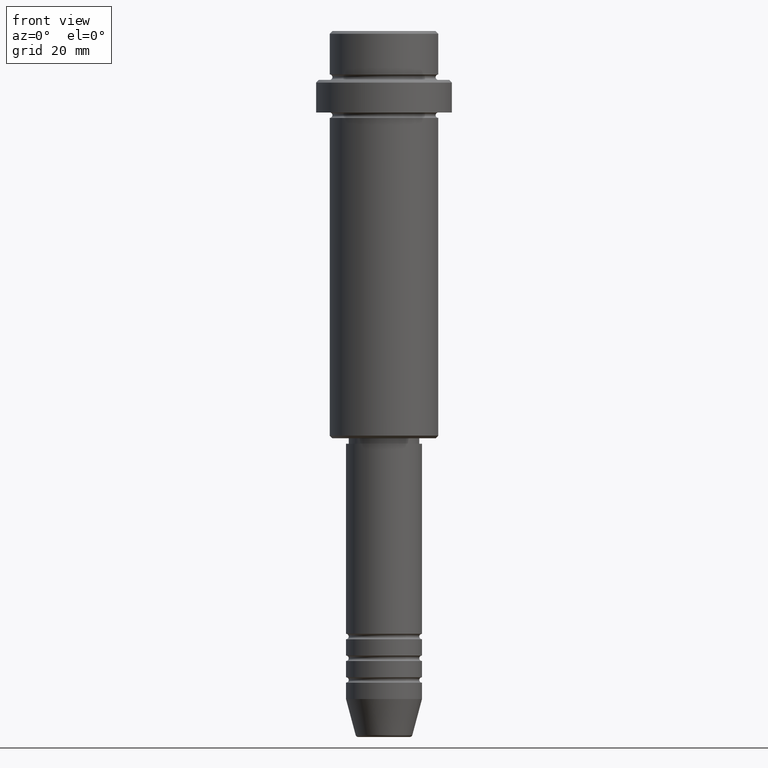
[diagram: clean part render]
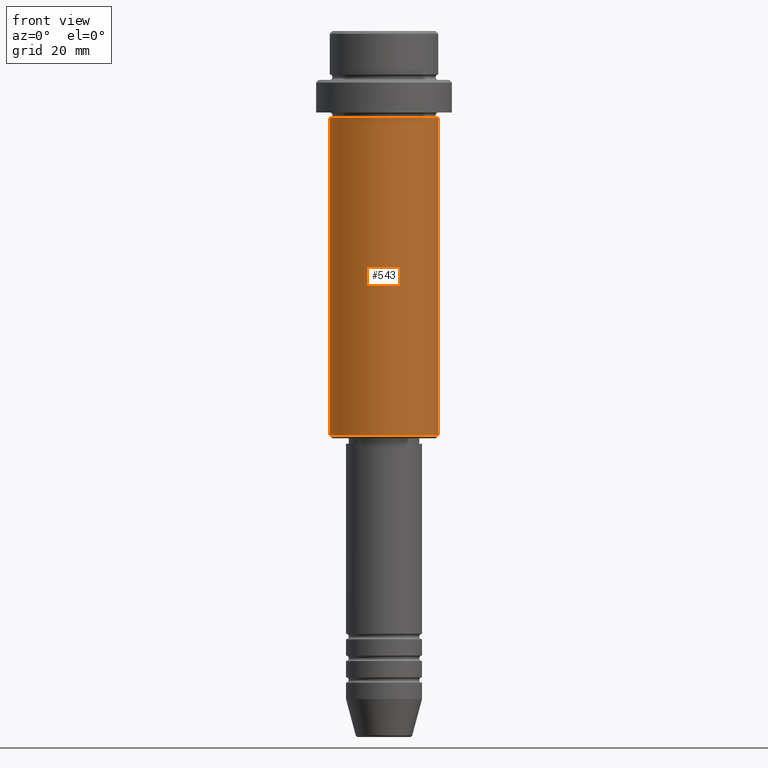
[diagram: same view with one face highlighted and labeled with its STEP entity id]
A machine part, front view. The second image highlights one B-rep face of the part: STEP entity #543.
In plain terms, the highlighted cylindrical surface (partial cylindrical patch) has radius 10 mm, axis along (-0, -0, 1).
Its self-contained STEP definition (entity closure, byte-faithful):
#81 = DIRECTION ( 'NONE',  ( -0.000000000000000000, -0.000000000000000000, 1.000000000000000000 ) ) ;
#93 = ORIENTED_EDGE ( 'NONE', *, *, #900, .T. ) ;
#217 = CIRCLE ( 'NONE', #1036, 9.999999999999998224 ) ;
#223 = VERTEX_POINT ( 'NONE', #1030 ) ;
#249 = CARTESIAN_POINT ( 'NONE',  ( 0.000000000000000000, 0.000000000000000000, -74.50000000000001421 ) ) ;
#252 = ORIENTED_EDGE ( 'NONE', *, *, #1307, .F. ) ;
#253 = CARTESIAN_POINT ( 'NONE',  ( 9.999999999999998224, 0.000000000000000000, 0.000000000000000000 ) ) ;
#277 = DIRECTION ( 'NONE',  ( -1.000000000000000000, 0.000000000000000000, 0.000000000000000000 ) ) ;
#324 = CARTESIAN_POINT ( 'NONE',  ( 0.000000000000000000, 0.000000000000000000, 0.000000000000000000 ) ) ;
#345 = DIRECTION ( 'NONE',  ( -0.000000000000000000, -0.000000000000000000, 1.000000000000000000 ) ) ;
#423 = EDGE_LOOP ( 'NONE', ( #1116, #1388, #93, #252 ) ) ;
#491 = AXIS2_PLACEMENT_3D ( 'NONE', #249, #81, #277 ) ;
#543 = ADVANCED_FACE ( 'NONE', ( #871 ), #1308, .T. ) ;
#644 = CARTESIAN_POINT ( 'NONE',  ( -9.999999999999998224, 1.224646799147353059E-15, 0.000000000000000000 ) ) ;
#705 = VECTOR ( 'NONE', #345, 1000.000000000000000 ) ;
#715 = EDGE_CURVE ( 'NONE', #1298, #223, #1152, .T. ) ;
#765 = DIRECTION ( 'NONE',  ( -0.000000000000000000, -0.000000000000000000, 1.000000000000000000 ) ) ;
#776 = EDGE_CURVE ( 'NONE', #1298, #1130, #982, .T. ) ;
#871 = FACE_OUTER_BOUND ( 'NONE', #423, .T. ) ;
#873 = DIRECTION ( 'NONE',  ( 1.000000000000000000, 0.000000000000000000, 0.000000000000000000 ) ) ;
#900 = EDGE_CURVE ( 'NONE', #223, #1165, #1290, .T. ) ;
#971 = VECTOR ( 'NONE', #1173, 1000.000000000000000 ) ;
#974 = CARTESIAN_POINT ( 'NONE',  ( -9.999999999999998224, 1.224646799147353059E-15, -74.50000000000001421 ) ) ;
#982 = LINE ( 'NONE', #644, #971 ) ;
#1027 = CARTESIAN_POINT ( 'NONE',  ( 9.999999999999998224, 0.000000000000000000, -16.00000000000000000 ) ) ;
#1030 = CARTESIAN_POINT ( 'NONE',  ( 9.999999999999998224, 0.000000000000000000, -74.50000000000001421 ) ) ;
#1036 = AXIS2_PLACEMENT_3D ( 'NONE', #1415, #1304, #873 ) ;
#1116 = ORIENTED_EDGE ( 'NONE', *, *, #776, .F. ) ;
#1130 = VERTEX_POINT ( 'NONE', #1376 ) ;
#1147 = AXIS2_PLACEMENT_3D ( 'NONE', #324, #765, #1197 ) ;
#1152 = CIRCLE ( 'NONE', #491, 9.999999999999998224 ) ;
#1165 = VERTEX_POINT ( 'NONE', #1027 ) ;
#1173 = DIRECTION ( 'NONE',  ( -0.000000000000000000, -0.000000000000000000, 1.000000000000000000 ) ) ;
#1197 = DIRECTION ( 'NONE',  ( 1.000000000000000000, 0.000000000000000000, 0.000000000000000000 ) ) ;
#1290 = LINE ( 'NONE', #253, #705 ) ;
#1298 = VERTEX_POINT ( 'NONE', #974 ) ;
#1304 = DIRECTION ( 'NONE',  ( -0.000000000000000000, -0.000000000000000000, 1.000000000000000000 ) ) ;
#1307 = EDGE_CURVE ( 'NONE', #1130, #1165, #217, .T. ) ;
#1308 = CYLINDRICAL_SURFACE ( 'NONE', #1147, 9.999999999999998224 ) ;
#1376 = CARTESIAN_POINT ( 'NONE',  ( -9.999999999999998224, 1.224646799147353059E-15, -16.00000000000000000 ) ) ;
#1388 = ORIENTED_EDGE ( 'NONE', *, *, #715, .T. ) ;
#1415 = CARTESIAN_POINT ( 'NONE',  ( 0.000000000000000000, 0.000000000000000000, -16.00000000000000000 ) ) ;